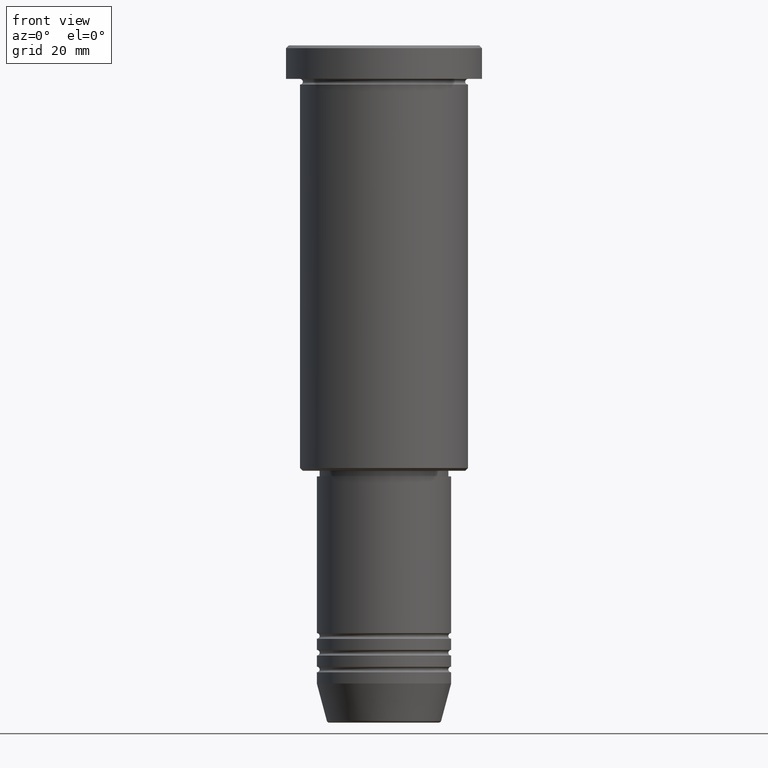
[diagram: clean part render]
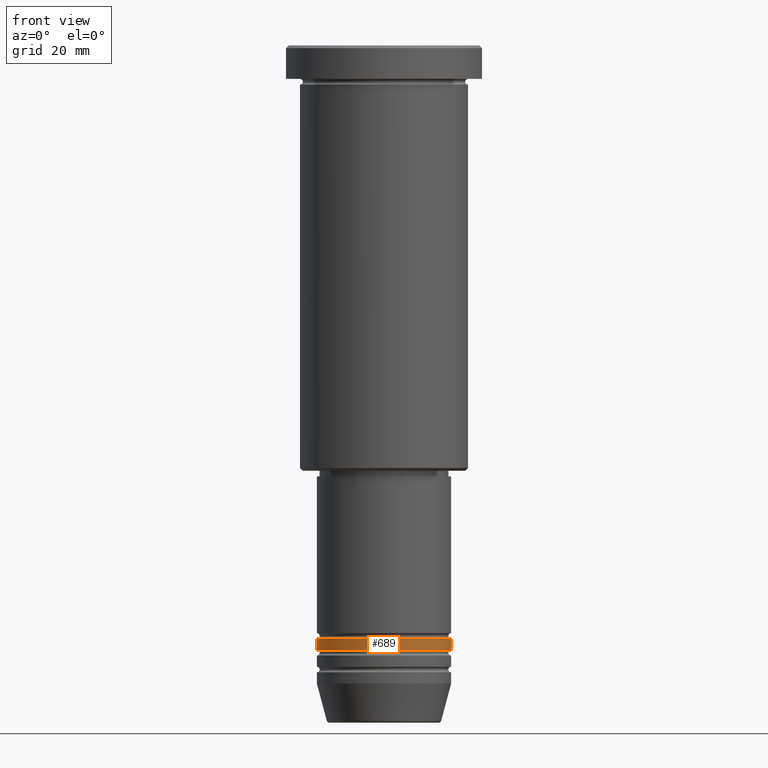
[diagram: same view with one face highlighted and labeled with its STEP entity id]
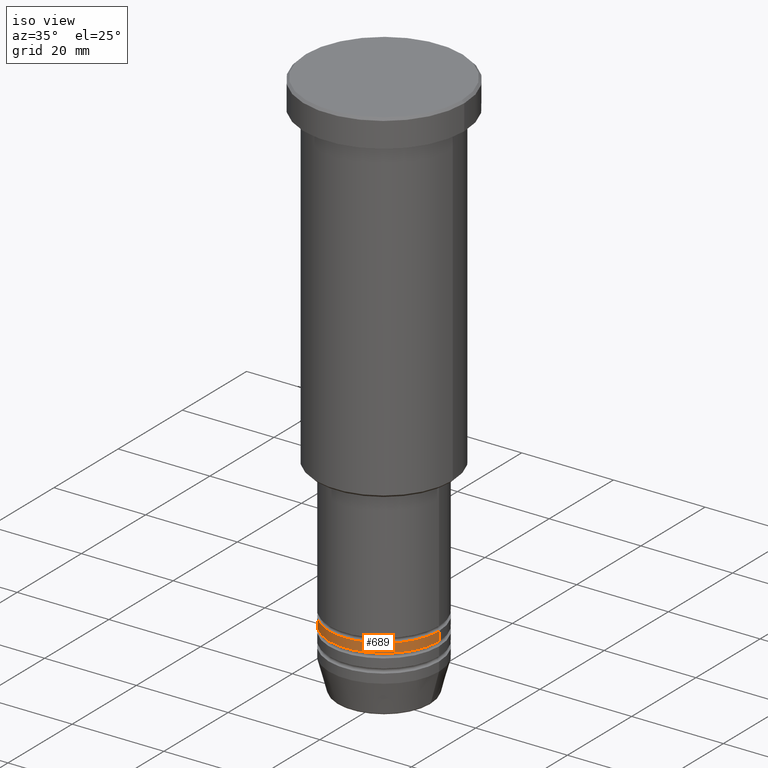
[diagram: same view with one face highlighted and labeled with its STEP entity id]
A machine part, front view. The second image highlights one B-rep face of the part: STEP entity #689.
A second angle (iso view) of the same face is appended — the face is thin or edge-on in the first view.
In plain terms, the highlighted cylindrical surface (partial cylindrical patch) has radius 12 mm, axis along (-0, -0, 1).
Its self-contained STEP definition (entity closure, byte-faithful):
#5 = AXIS2_PLACEMENT_3D ( 'NONE', #352, #261, #616 ) ;
#15 = EDGE_CURVE ( 'NONE', #902, #367, #399, .T. ) ;
#115 = CARTESIAN_POINT ( 'NONE',  ( -12.00000000000000000, 1.469576158976823947E-15, -107.9999999999999574 ) ) ;
#137 = LINE ( 'NONE', #418, #769 ) ;
#164 = CYLINDRICAL_SURFACE ( 'NONE', #1174, 12.00000000000000000 ) ;
#182 = EDGE_CURVE ( 'NONE', #272, #435, #890, .T. ) ;
#248 = CARTESIAN_POINT ( 'NONE',  ( 0.000000000000000000, 0.000000000000000000, -105.9999999999999716 ) ) ;
#261 = DIRECTION ( 'NONE',  ( -0.000000000000000000, -0.000000000000000000, 1.000000000000000000 ) ) ;
#263 = ORIENTED_EDGE ( 'NONE', *, *, #15, .F. ) ;
#269 = CARTESIAN_POINT ( 'NONE',  ( 0.000000000000000000, 0.000000000000000000, 0.000000000000000000 ) ) ;
#272 = VERTEX_POINT ( 'NONE', #115 ) ;
#273 = LINE ( 'NONE', #588, #499 ) ;
#352 = CARTESIAN_POINT ( 'NONE',  ( 0.000000000000000000, 0.000000000000000000, -107.9999999999999574 ) ) ;
#353 = DIRECTION ( 'NONE',  ( -0.000000000000000000, -0.000000000000000000, 1.000000000000000000 ) ) ;
#367 = VERTEX_POINT ( 'NONE', #1153 ) ;
#399 = CIRCLE ( 'NONE', #945, 12.00000000000000000 ) ;
#418 = CARTESIAN_POINT ( 'NONE',  ( -12.00000000000000000, 1.469576158976823947E-15, 0.000000000000000000 ) ) ;
#435 = VERTEX_POINT ( 'NONE', #876 ) ;
#497 = DIRECTION ( 'NONE',  ( -0.000000000000000000, -0.000000000000000000, 1.000000000000000000 ) ) ;
#499 = VECTOR ( 'NONE', #497, 1000.000000000000000 ) ;
#515 = DIRECTION ( 'NONE',  ( -0.000000000000000000, -0.000000000000000000, 1.000000000000000000 ) ) ;
#527 = DIRECTION ( 'NONE',  ( -0.000000000000000000, -0.000000000000000000, 1.000000000000000000 ) ) ;
#533 = FACE_OUTER_BOUND ( 'NONE', #580, .T. ) ;
#580 = EDGE_LOOP ( 'NONE', ( #1141, #818, #736, #263 ) ) ;
#588 = CARTESIAN_POINT ( 'NONE',  ( 12.00000000000000000, 0.000000000000000000, 0.000000000000000000 ) ) ;
#616 = DIRECTION ( 'NONE',  ( 1.000000000000000000, 0.000000000000000000, 0.000000000000000000 ) ) ;
#631 = DIRECTION ( 'NONE',  ( 1.000000000000000000, 0.000000000000000000, 0.000000000000000000 ) ) ;
#637 = EDGE_CURVE ( 'NONE', #272, #902, #137, .T. ) ;
#689 = ADVANCED_FACE ( 'NONE', ( #533 ), #164, .T. ) ;
#736 = ORIENTED_EDGE ( 'NONE', *, *, #761, .T. ) ;
#761 = EDGE_CURVE ( 'NONE', #435, #367, #273, .T. ) ;
#769 = VECTOR ( 'NONE', #515, 1000.000000000000000 ) ;
#818 = ORIENTED_EDGE ( 'NONE', *, *, #182, .T. ) ;
#876 = CARTESIAN_POINT ( 'NONE',  ( 12.00000000000000000, 0.000000000000000000, -107.9999999999999574 ) ) ;
#882 = DIRECTION ( 'NONE',  ( 1.000000000000000000, 0.000000000000000000, 0.000000000000000000 ) ) ;
#890 = CIRCLE ( 'NONE', #5, 12.00000000000000000 ) ;
#902 = VERTEX_POINT ( 'NONE', #1144 ) ;
#945 = AXIS2_PLACEMENT_3D ( 'NONE', #248, #353, #882 ) ;
#1141 = ORIENTED_EDGE ( 'NONE', *, *, #637, .F. ) ;
#1144 = CARTESIAN_POINT ( 'NONE',  ( -12.00000000000000000, 1.469576158976823947E-15, -105.9999999999999716 ) ) ;
#1153 = CARTESIAN_POINT ( 'NONE',  ( 12.00000000000000000, 0.000000000000000000, -105.9999999999999716 ) ) ;
#1174 = AXIS2_PLACEMENT_3D ( 'NONE', #269, #527, #631 ) ;